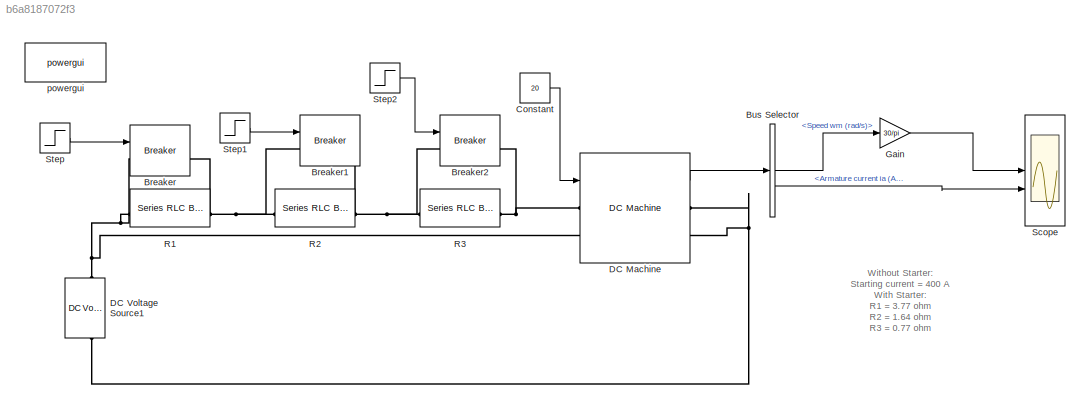
MODEL slx_b6a8187072f3
KIND model
CONFIG AbsTol = auto
CONFIG EnableMultiTasking = off
CONFIG FixedStep = auto
CONFIG MaxStep = auto
CONFIG MinStep = auto
CONFIG RelTol = 1e-3
CONFIG SampleTimeConstraint = Unconstrained
CONFIG SolverName = VariableStepAuto
CONFIG StartTime = 0.0
CONFIG StopTime = 10.0
BLOCK [Reference] Breaker  REF=spsBreakerLib/Breaker
  LibrarySourceBlock = sps_lib/Power Grid Elements/Breaker
  SourceBlock = spsBreakerLib/Breaker
  SourceType = Breaker
BLOCK [Reference] Breaker1  REF=spsBreakerLib/Breaker
  LibrarySourceBlock = sps_lib/Power Grid Elements/Breaker
  SourceBlock = spsBreakerLib/Breaker
  SourceType = Breaker
BLOCK [Reference] Breaker2  REF=spsBreakerLib/Breaker
  LibrarySourceBlock = sps_lib/Power Grid Elements/Breaker
  SourceBlock = spsBreakerLib/Breaker
  SourceType = Breaker
BLOCK [BusSelector] Bus Selector
  OutputSignals = Speed wm (rad/s),Armature current ia (A)
BLOCK [Constant] Constant
  Value = 20
BLOCK [Reference] DC Machine  REF=spsDCMachineLib/DC Machine
  LibrarySourceBlock = sps_lib/Electrical Machines/DC Machine
  SourceBlock = spsDCMachineLib/DC Machine
  SourceType = DC machine
BLOCK [Reference] DC Voltage Source1  REF=spsDCVoltageSourceLib/DC Voltage Source
  LibrarySourceBlock = sps_lib/Sources/DC Voltage Source
  SourceBlock = spsDCVoltageSourceLib/DC Voltage Source
  SourceType = DC Voltage Source
BLOCK [Gain] Gain
  Gain = 30/pi
BLOCK [Reference] R1  REF=spsSeriesRLCBranchLib/Series RLC Branch
  LibrarySourceBlock = sps_lib/Passives/Series RLC Branch
  SourceBlock = spsSeriesRLCBranchLib/Series RLC Branch
  SourceType = Series RLC Branch
BLOCK [Reference] R2  REF=spsSeriesRLCBranchLib/Series RLC Branch
  LibrarySourceBlock = sps_lib/Passives/Series RLC Branch
  SourceBlock = spsSeriesRLCBranchLib/Series RLC Branch
  SourceType = Series RLC Branch
BLOCK [Reference] R3  REF=spsSeriesRLCBranchLib/Series RLC Branch
  LibrarySourceBlock = sps_lib/Passives/Series RLC Branch
  SourceBlock = spsSeriesRLCBranchLib/Series RLC Branch
  SourceType = Series RLC Branch
BLOCK [Scope] Scope
  Floating = off
  NumInputPorts = 2
  ScopeSpecificationString = Simulink.scopes.TimeScopeBlockCfg('CurrentConfiguration', extmgr.ConfigurationSet(extmgr.Configuration('Core','General UI',true),extmgr.Configuration('Core','Source UI',true),extmgr.Configuration('Sources','WiredSimulink',true),extmgr.Configuration('Visuals','Time Domain',true,'SerializedDisplays',{struct('MinYLimReal','-143.77155','MaxYLimReal','1389.43693','YLabelReal','','MinYLimMag',' 0.00000'...<+2601ch>
BLOCK [Step] Step
  SampleTime = 0
  Time = 2.8
BLOCK [Step] Step1
  SampleTime = 0
  Time = 4.8
BLOCK [Step] Step2
  SampleTime = 0
  Time = 6.8
BLOCK [Reference] powergui  REF=sps_lib/powergui
  LibrarySourceBlock = sps_lib/powergui
  Priority = 1
  SourceBlock = sps_lib/powergui
  SourceType = PSB option menu block
ANNOTATION (root): Without Starter: Starting current = 400 A With Starter: R1 = 3.77 ohm R2 = 1.64 ohm R3 = 0.77 ohm
LINE Bus Selector:1 -> Gain:1
LINE Bus Selector:2 -> Scope:2
LINE Constant:1 -> DC Machine:1
LINE DC Machine:1 -> Bus Selector:1
LINE Gain:1 -> Scope:1
LINE Step1:1 -> Breaker1:1
LINE Step2:1 -> Breaker2:1
LINE Step:1 -> Breaker:1
PNET net1: Breaker1:LConn1 -- Breaker:RConn1 -- R1:RConn1 -- R2:LConn1
PNET net2: Breaker1:RConn1 -- Breaker2:LConn1 -- R2:RConn1 -- R3:LConn1
PNET net3: Breaker2:RConn1 -- DC Machine:LConn1 -- R3:RConn1
PNET net4: Breaker:LConn1 -- DC Machine:LConn2 -- DC Voltage Source1:RConn1 -- R1:LConn1
PNET net5: DC Machine:RConn1 -- DC Machine:RConn2 -- DC Voltage Source1:LConn1
note: PNET lines group multi-terminal physical nets as a canonical sorted terminal list (undirected conserving connections); 2-terminal nets keep the pairwise PLINE form
